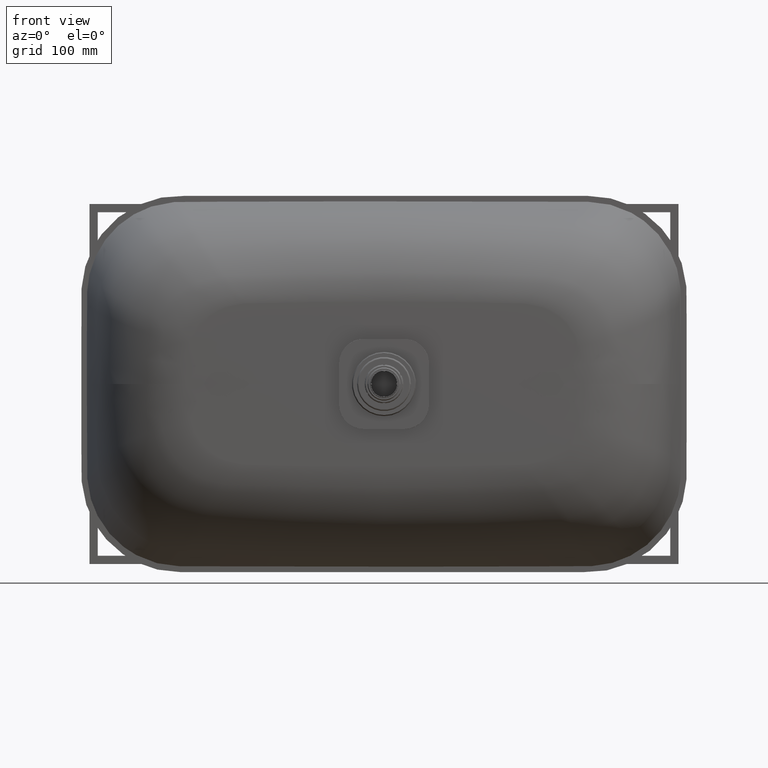
[diagram: clean part render]
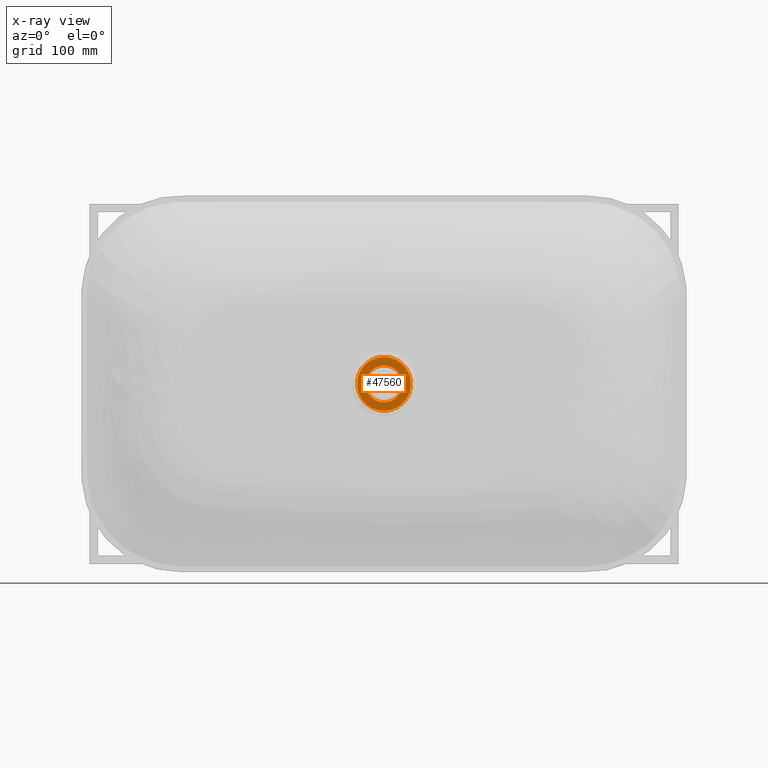
[diagram: x-ray — body ghosted, one internal face saturated and labeled with its STEP entity id]
A machine part, front view, then the same camera in x-ray: the body is ghosted and one INTERNAL B-rep face — a face not visible from any outside direction — is saturated and labeled: STEP entity #47560.
In plain terms, the highlighted planar face has unit normal (0, -1, 0).
Its self-contained STEP definition (entity closure, byte-faithful):
#499 = FACE_OUTER_BOUND ( 'NONE', #63911, .T. ) ;
#1216 = DIRECTION ( 'NONE',  ( 0.0000000000000000000, 0.0000000000000000000, -1.000000000000000000 ) ) ;
#1247 = DIRECTION ( 'NONE',  ( 0.0000000000000000000, -1.000000000000000000, 0.0000000000000000000 ) ) ;
#7307 = AXIS2_PLACEMENT_3D ( 'NONE', #8920, #34536, #60153 ) ;
#8343 = AXIS2_PLACEMENT_3D ( 'NONE', #82862, #25299, #50916 ) ;
#8920 = CARTESIAN_POINT ( 'NONE',  ( 8.326672684688674053E-14, -136.9999999999998863, 4.718447854656915297E-13 ) ) ;
#14568 = VERTEX_POINT ( 'NONE', #16033 ) ;
#16033 = CARTESIAN_POINT ( 'NONE',  ( 8.602218214496828137E-14, -136.9999999999998863, 22.50000000000047606 ) ) ;
#19809 = DIRECTION ( 'NONE',  ( 0.0000000000000000000, -0.0000000000000000000, -1.000000000000000000 ) ) ;
#23248 = CARTESIAN_POINT ( 'NONE',  ( 8.326672684688674053E-14, -136.9999999999998863, -32.99999999999953104 ) ) ;
#24210 = ORIENTED_EDGE ( 'NONE', *, *, #58744, .T. ) ;
#24477 = ORIENTED_EDGE ( 'NONE', *, *, #28031, .T. ) ;
#25299 = DIRECTION ( 'NONE',  ( 0.0000000000000000000, -1.000000000000000000, 0.0000000000000000000 ) ) ;
#26116 = PLANE ( 'NONE',  #51259 ) ;
#26864 = DIRECTION ( 'NONE',  ( 0.0000000000000000000, 0.0000000000000000000, -1.000000000000000000 ) ) ;
#28031 = EDGE_CURVE ( 'NONE', #66773, #53501, #59198, .T. ) ;
#30874 = CARTESIAN_POINT ( 'NONE',  ( 8.730806128407301304E-14, -136.9999999999998863, 33.00000000000047606 ) ) ;
#33140 = CARTESIAN_POINT ( 'NONE',  ( 8.326672684688674053E-14, -136.9999999999998863, 4.718447854656915297E-13 ) ) ;
#33826 = CIRCLE ( 'NONE', #8343, 22.50000000000000355 ) ;
#34536 = DIRECTION ( 'NONE',  ( 0.0000000000000000000, -1.000000000000000000, 0.0000000000000000000 ) ) ;
#38969 = ORIENTED_EDGE ( 'NONE', *, *, #47087, .F. ) ;
#43535 = CIRCLE ( 'NONE', #7307, 22.50000000000000355 ) ;
#45676 = VERTEX_POINT ( 'NONE', #61439 ) ;
#45913 = AXIS2_PLACEMENT_3D ( 'NONE', #33140, #58754, #1216 ) ;
#47087 = EDGE_CURVE ( 'NONE', #14568, #45676, #33826, .T. ) ;
#47560 = ADVANCED_FACE ( 'NONE', ( #58031, #499 ), #26116, .T. ) ;
#48460 = AXIS2_PLACEMENT_3D ( 'NONE', #58785, #1247, #26864 ) ;
#50345 = ORIENTED_EDGE ( 'NONE', *, *, #72223, .F. ) ;
#50916 = DIRECTION ( 'NONE',  ( 0.0000000000000000000, 0.0000000000000000000, -1.000000000000000000 ) ) ;
#51259 = AXIS2_PLACEMENT_3D ( 'NONE', #51735, #77367, #19809 ) ;
#51735 = CARTESIAN_POINT ( 'NONE',  ( 8.326672684688674053E-14, -136.9999999999998863, 4.718447854656915297E-13 ) ) ;
#53501 = VERTEX_POINT ( 'NONE', #30874 ) ;
#58031 = FACE_BOUND ( 'NONE', #80529, .T. ) ;
#58744 = EDGE_CURVE ( 'NONE', #53501, #66773, #82167, .T. ) ;
#58754 = DIRECTION ( 'NONE',  ( 0.0000000000000000000, -1.000000000000000000, 0.0000000000000000000 ) ) ;
#58785 = CARTESIAN_POINT ( 'NONE',  ( 8.326672684688674053E-14, -136.9999999999998863, 4.718447854656915297E-13 ) ) ;
#59198 = CIRCLE ( 'NONE', #48460, 33.00000000000000000 ) ;
#60153 = DIRECTION ( 'NONE',  ( 0.0000000000000000000, 0.0000000000000000000, -1.000000000000000000 ) ) ;
#61439 = CARTESIAN_POINT ( 'NONE',  ( 8.326672684688674053E-14, -136.9999999999998863, -22.49999999999953104 ) ) ;
#63911 = EDGE_LOOP ( 'NONE', ( #24477, #24210 ) ) ;
#66773 = VERTEX_POINT ( 'NONE', #23248 ) ;
#72223 = EDGE_CURVE ( 'NONE', #45676, #14568, #43535, .T. ) ;
#77367 = DIRECTION ( 'NONE',  ( 0.0000000000000000000, -1.000000000000000000, 0.0000000000000000000 ) ) ;
#80529 = EDGE_LOOP ( 'NONE', ( #50345, #38969 ) ) ;
#82167 = CIRCLE ( 'NONE', #45913, 33.00000000000000000 ) ;
#82862 = CARTESIAN_POINT ( 'NONE',  ( 8.326672684688674053E-14, -136.9999999999998863, 4.718447854656915297E-13 ) ) ;